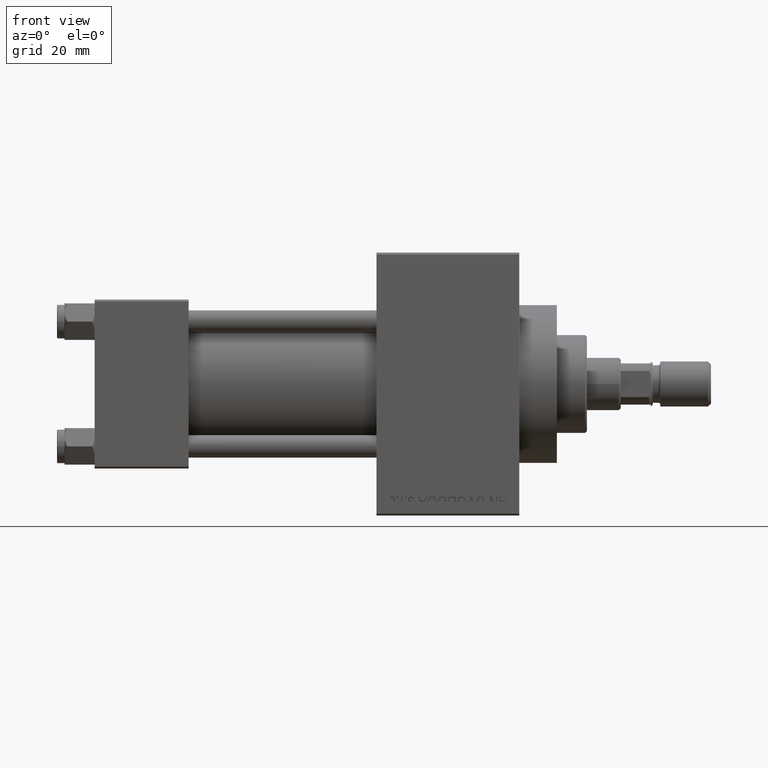
[diagram: clean part render]
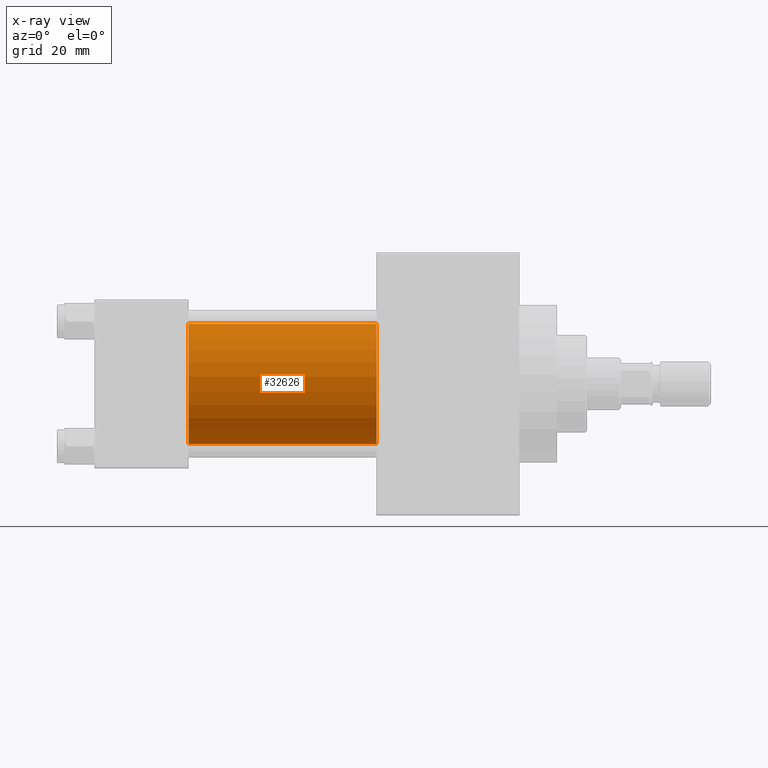
[diagram: x-ray — body ghosted, one internal face saturated and labeled with its STEP entity id]
A machine part, front view, then the same camera in x-ray: the body is ghosted and one INTERNAL B-rep face — a face not visible from any outside direction — is saturated and labeled: STEP entity #32626.
In plain terms, the highlighted cylindrical surface (partial cylindrical patch) has radius 16 mm, axis along (-1, -0, -0).
Its self-contained STEP definition (entity closure, byte-faithful):
#1026 = CYLINDRICAL_SURFACE ( 'NONE', #6326, 16.00000000000000000 ) ;
#2762 = ORIENTED_EDGE ( 'NONE', *, *, #24794, .T. ) ;
#4903 = CARTESIAN_POINT ( 'NONE',  ( 75.00000000000001421, -2.602085213965210642E-15, 16.00000000000000000 ) ) ;
#4926 = VERTEX_POINT ( 'NONE', #6174 ) ;
#5305 = ORIENTED_EDGE ( 'NONE', *, *, #25020, .T. ) ;
#6174 = CARTESIAN_POINT ( 'NONE',  ( 25.00000000000000000, -2.602085213965210642E-15, 16.00000000000000000 ) ) ;
#6326 = AXIS2_PLACEMENT_3D ( 'NONE', #46409, #34880, #16098 ) ;
#10115 = DIRECTION ( 'NONE',  ( -1.000000000000000000, -0.000000000000000000, -0.000000000000000000 ) ) ;
#11026 = AXIS2_PLACEMENT_3D ( 'NONE', #43828, #24545, #47349 ) ;
#11517 = AXIS2_PLACEMENT_3D ( 'NONE', #16897, #28647, #28153 ) ;
#13113 = EDGE_CURVE ( 'NONE', #42331, #4926, #20947, .T. ) ;
#14143 = CARTESIAN_POINT ( 'NONE',  ( 75.00000000000001421, -6.426503353294456087E-16, -16.00000000000000000 ) ) ;
#15318 = ORIENTED_EDGE ( 'NONE', *, *, #29609, .F. ) ;
#16098 = DIRECTION ( 'NONE',  ( 0.000000000000000000, 0.000000000000000000, 1.000000000000000000 ) ) ;
#16897 = CARTESIAN_POINT ( 'NONE',  ( 75.00000000000001421, -2.602085213965210642E-15, 0.000000000000000000 ) ) ;
#20445 = DIRECTION ( 'NONE',  ( -1.000000000000000000, -0.000000000000000000, -0.000000000000000000 ) ) ;
#20840 = VERTEX_POINT ( 'NONE', #44939 ) ;
#20947 = LINE ( 'NONE', #4903, #22429 ) ;
#22429 = VECTOR ( 'NONE', #20445, 1000.000000000000000 ) ;
#24545 = DIRECTION ( 'NONE',  ( 1.000000000000000000, 0.000000000000000000, 0.000000000000000000 ) ) ;
#24631 = CIRCLE ( 'NONE', #11026, 16.00000000000000000 ) ;
#24794 = EDGE_CURVE ( 'NONE', #42331, #20840, #37124, .T. ) ;
#25020 = EDGE_CURVE ( 'NONE', #20840, #37649, #48460, .T. ) ;
#28153 = DIRECTION ( 'NONE',  ( 0.000000000000000000, 0.000000000000000000, -1.000000000000000000 ) ) ;
#28308 = VECTOR ( 'NONE', #10115, 1000.000000000000000 ) ;
#28647 = DIRECTION ( 'NONE',  ( 1.000000000000000000, 0.000000000000000000, 0.000000000000000000 ) ) ;
#28868 = CARTESIAN_POINT ( 'NONE',  ( 75.00000000000001421, -2.602085213965210642E-15, 16.00000000000000000 ) ) ;
#29609 = EDGE_CURVE ( 'NONE', #4926, #37649, #24631, .T. ) ;
#30612 = CARTESIAN_POINT ( 'NONE',  ( 25.00000000000000000, -6.426503353294456087E-16, -16.00000000000000000 ) ) ;
#32626 = ADVANCED_FACE ( 'NONE', ( #35367 ), #1026, .F. ) ;
#34880 = DIRECTION ( 'NONE',  ( -1.000000000000000000, -0.000000000000000000, -0.000000000000000000 ) ) ;
#35367 = FACE_OUTER_BOUND ( 'NONE', #35482, .T. ) ;
#35482 = EDGE_LOOP ( 'NONE', ( #2762, #5305, #15318, #43419 ) ) ;
#37124 = CIRCLE ( 'NONE', #11517, 16.00000000000000000 ) ;
#37649 = VERTEX_POINT ( 'NONE', #30612 ) ;
#42331 = VERTEX_POINT ( 'NONE', #28868 ) ;
#43419 = ORIENTED_EDGE ( 'NONE', *, *, #13113, .F. ) ;
#43828 = CARTESIAN_POINT ( 'NONE',  ( 25.00000000000000000, -2.602085213965210642E-15, 0.000000000000000000 ) ) ;
#44939 = CARTESIAN_POINT ( 'NONE',  ( 75.00000000000001421, -6.426503353294456087E-16, -16.00000000000000000 ) ) ;
#46409 = CARTESIAN_POINT ( 'NONE',  ( 75.00000000000001421, -2.602085213965210642E-15, 0.000000000000000000 ) ) ;
#47349 = DIRECTION ( 'NONE',  ( 0.000000000000000000, 0.000000000000000000, -1.000000000000000000 ) ) ;
#48460 = LINE ( 'NONE', #14143, #28308 ) ;